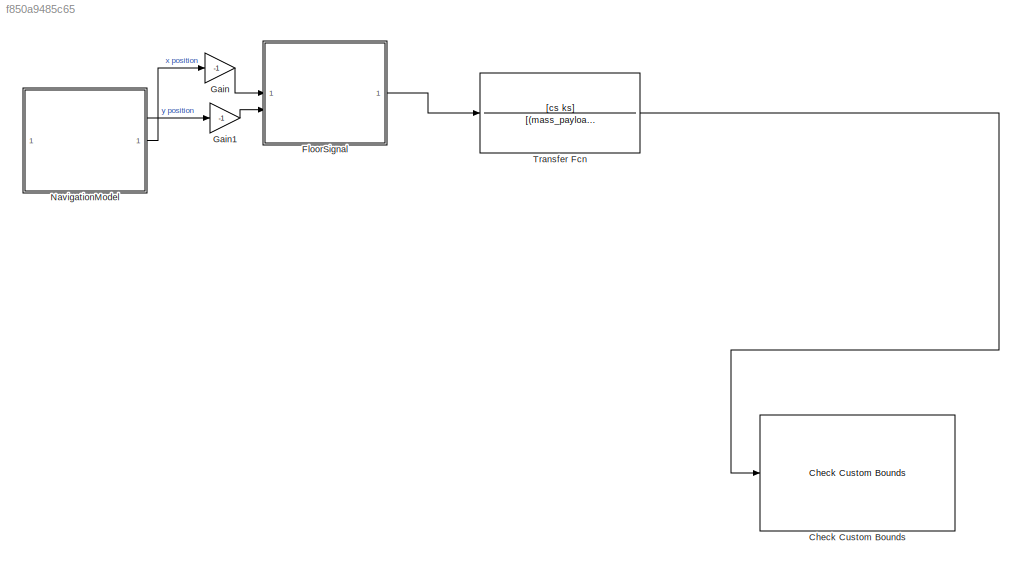
MODEL slx_f850a9485c65
KIND model
CONFIG AbsTol = auto
CONFIG EnableMultiTasking = off
CONFIG FixedStep = auto
CONFIG MaxStep = auto
CONFIG MinStep = auto
CONFIG RelTol = 1e-3
CONFIG SampleTimeConstraint = Unconstrained
CONFIG SolverName = VariableStepAuto
CONFIG StartTime = 0.0
CONFIG StopTime = 700
BLOCK [Reference] Check Custom Bounds  REF=checkpacklib/Check Custom Bounds
  InstantiateOnLoad = on
  LibrarySourceBlock = sdolib/Model Verification/Check Custom Bounds
  SourceBlock = checkpacklib/Check Custom Bounds
  SourceType = Checks_CustomBounds
BLOCK [ModelReference] FloorSignal
  ModelNameDialog = FloorSignal.slx
  ModelReferenceVersion = 1.9
BLOCK [Gain] Gain
  Gain = -1
BLOCK [Gain] Gain1
  Gain = -1
BLOCK [ModelReference] NavigationModel
  ModelNameDialog = NavigationModel.slx
  ModelReferenceVersion = 1.99
BLOCK [TransferFcn] Transfer Fcn
  Denominator = [(mass_payload+mass_robot) cs ks]
  Numerator = [cs ks]
LINE FloorSignal:1 -> Transfer Fcn:1
LINE Gain1:1 -> FloorSignal:2
LINE Gain:1 -> FloorSignal:1
LINE NavigationModel:1 -> Gain:1
LINE NavigationModel:2 -> Gain1:1
LINE Transfer Fcn:1 -> Check Custom Bounds:1
